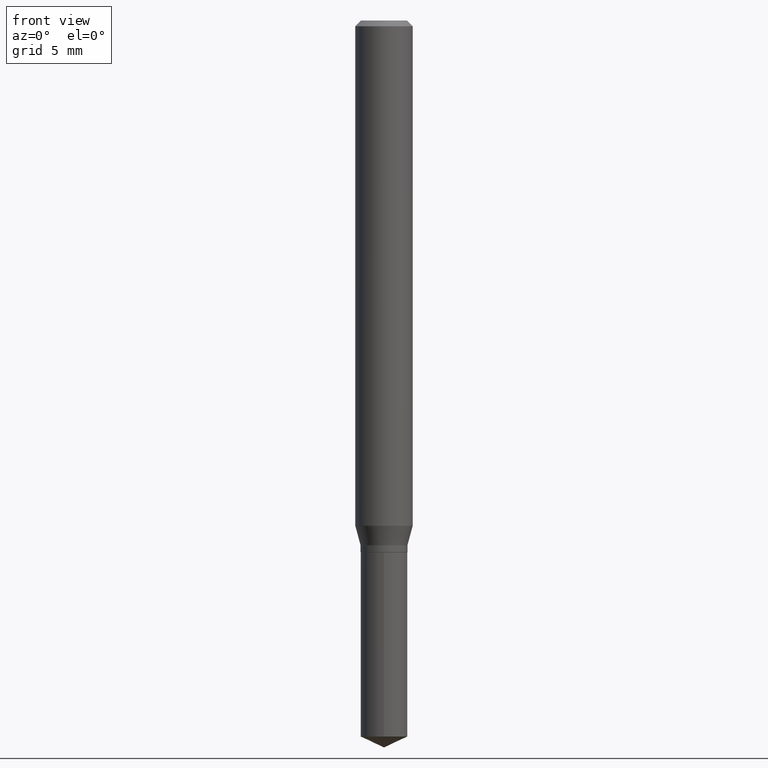
[diagram: clean part render]
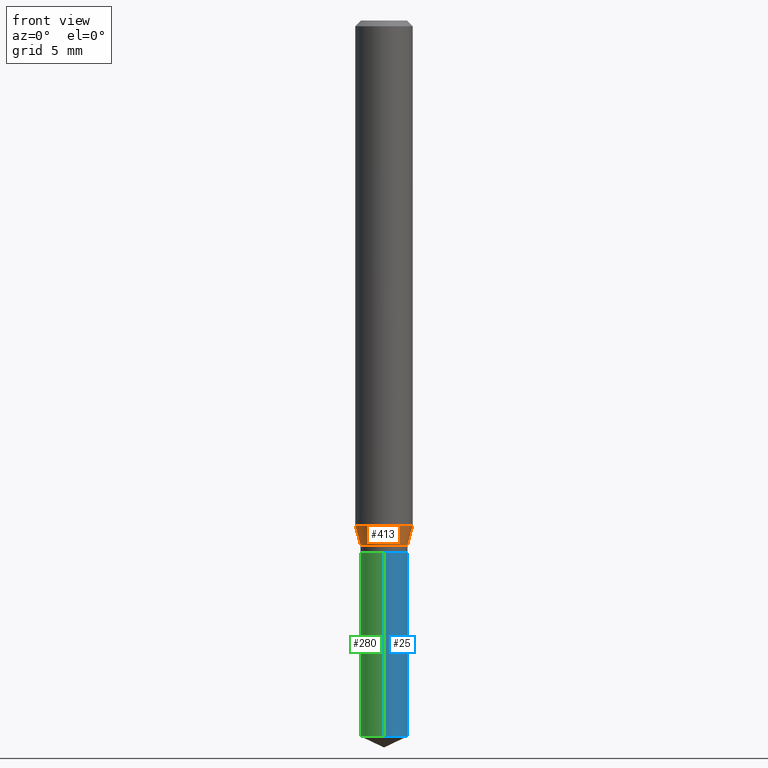
[diagram: same view with three faces highlighted in distinct colors, each labeled with its STEP entity id]
A machine part, front view with three faces highlighted in distinct colors.
Their STEP definitions:

[orange] entity #413 — the highlighted conical surface has half-angle 15 deg.
#1 = EDGE_CURVE ( 'NONE', #246, #277, #376, .T. ) ;
#5 = CARTESIAN_POINT ( 'NONE',  ( 0.05905000000000013016, -4.042415625965365299E-15, -1.039693851278255643 ) ) ;
#36 = CARTESIAN_POINT ( 'NONE',  ( -0.04824999999999998040, -3.427962975946348751E-15, -1.079999999999999849 ) ) ;
#38 = CARTESIAN_POINT ( 'NONE',  ( -0.05905000000000013016, -3.210496194381650492E-15, -1.039693851278255643 ) ) ;
#39 = VECTOR ( 'NONE', #377, 39.37007874015747433 ) ;
#43 = LINE ( 'NONE', #485, #39 ) ;
#64 = CARTESIAN_POINT ( 'NONE',  ( 2.641106310679947278E-29, -3.770799845950596803E-15, -1.079999999999999849 ) ) ;
#76 = FACE_OUTER_BOUND ( 'NONE', #180, .T. ) ;
#98 = VERTEX_POINT ( 'NONE', #189 ) ;
#126 = AXIS2_PLACEMENT_3D ( 'NONE', #294, #168, #315 ) ;
#133 = ORIENTED_EDGE ( 'NONE', *, *, #1, .F. ) ;
#143 = CIRCLE ( 'NONE', #259, 0.04824999999999998040 ) ;
#168 = DIRECTION ( 'NONE',  ( -2.445468806185136597E-29, 3.491481338843145583E-15, 1.000000000000000000 ) ) ;
#180 = EDGE_LOOP ( 'NONE', ( #437, #364, #286, #133 ) ) ;
#183 = CARTESIAN_POINT ( 'NONE',  ( 2.641106310679947278E-29, -3.770799845950596803E-15, -1.079999999999999849 ) ) ;
#189 = CARTESIAN_POINT ( 'NONE',  ( 0.04824999999999998040, -4.107727795148959614E-15, -1.079999999999999849 ) ) ;
#219 = LINE ( 'NONE', #36, #434 ) ;
#246 = VERTEX_POINT ( 'NONE', #38 ) ;
#249 = VERTEX_POINT ( 'NONE', #322 ) ;
#259 = AXIS2_PLACEMENT_3D ( 'NONE', #183, #488, #414 ) ;
#277 = VERTEX_POINT ( 'NONE', #5 ) ;
#286 = ORIENTED_EDGE ( 'NONE', *, *, #459, .T. ) ;
#294 = CARTESIAN_POINT ( 'NONE',  ( 2.542538881283463133E-29, -3.630071679847990379E-15, -1.039693851278255643 ) ) ;
#315 = DIRECTION ( 'NONE',  ( 1.000000000000000000, -6.982962677686265133E-15, 0.000000000000000000 ) ) ;
#322 = CARTESIAN_POINT ( 'NONE',  ( -0.04824999999999998040, -3.452403345318250590E-15, -1.079999999999999849 ) ) ;
#325 = DIRECTION ( 'NONE',  ( -0.2588190451025214611, 5.211531920934551042E-15, 0.9659258262890682012 ) ) ;
#364 = ORIENTED_EDGE ( 'NONE', *, *, #404, .T. ) ;
#376 = CIRCLE ( 'NONE', #126, 0.05905000000000013016 ) ;
#377 = DIRECTION ( 'NONE',  ( 0.2588190451025214611, 1.565188264969621573E-15, 0.9659258262890682012 ) ) ;
#388 = EDGE_CURVE ( 'NONE', #249, #246, #219, .T. ) ;
#394 = DIRECTION ( 'NONE',  ( 1.000000000000000000, -6.982962677686270655E-15, 0.000000000000000000 ) ) ;
#404 = EDGE_CURVE ( 'NONE', #249, #98, #143, .T. ) ;
#413 = ADVANCED_FACE ( 'NONE', ( #76 ), #468, .T. ) ;
#414 = DIRECTION ( 'NONE',  ( 1.000000000000000000, -6.982962677686270655E-15, 0.000000000000000000 ) ) ;
#434 = VECTOR ( 'NONE', #325, 39.37007874015747433 ) ;
#437 = ORIENTED_EDGE ( 'NONE', *, *, #388, .F. ) ;
#459 = EDGE_CURVE ( 'NONE', #98, #277, #43, .T. ) ;
#468 = CONICAL_SURFACE ( 'NONE', #476, 0.04824999999999998040, 0.2617993877991501295 ) ;
#471 = DIRECTION ( 'NONE',  ( -2.445468806185136597E-29, 3.491481338843145583E-15, 1.000000000000000000 ) ) ;
#476 = AXIS2_PLACEMENT_3D ( 'NONE', #64, #471, #394 ) ;
#485 = CARTESIAN_POINT ( 'NONE',  ( 0.04824999999999998040, -4.107727795148959614E-15, -1.079999999999999849 ) ) ;
#488 = DIRECTION ( 'NONE',  ( -2.445468806185136597E-29, 3.491481338843145583E-15, 1.000000000000000000 ) ) ;

[blue] entity #25 — the highlighted cylindrical surface (edge-blend (fillet) strip) has radius 1.2255 mm, axis along (-0, 0, 1).
#10 = CARTESIAN_POINT ( 'NONE',  ( -3.369279491983355948E-16, -0.04825000000000382455, -1.094499999999999806 ) ) ;
#25 = ADVANCED_FACE ( 'NONE', ( #440 ), #351, .T. ) ;
#29 = LINE ( 'NONE', #248, #310 ) ;
#48 = DIRECTION ( 'NONE',  ( -2.445358326776455510E-29, 3.491639551644474585E-15, 1.000000000000000000 ) ) ;
#49 = ORIENTED_EDGE ( 'NONE', *, *, #131, .F. ) ;
#84 = AXIS2_PLACEMENT_3D ( 'NONE', #460, #118, #383 ) ;
#93 = CARTESIAN_POINT ( 'NONE',  ( 3.428368700042843894E-16, 0.04824999999999617789, -1.094500000000000028 ) ) ;
#112 = DIRECTION ( 'NONE',  ( -6.982962677686266711E-15, -1.000000000000000000, 2.830930563382656003E-15 ) ) ;
#118 = DIRECTION ( 'NONE',  ( -2.445358326776455510E-29, 3.491639551644474585E-15, 1.000000000000000000 ) ) ;
#131 = EDGE_CURVE ( 'NONE', #486, #311, #406, .T. ) ;
#136 = VERTEX_POINT ( 'NONE', #191 ) ;
#146 = EDGE_CURVE ( 'NONE', #136, #312, #257, .T. ) ;
#155 = DIRECTION ( 'NONE',  ( -2.445358326776455790E-29, 3.491639551644474585E-15, 1.000000000000000000 ) ) ;
#176 = ORIENTED_EDGE ( 'NONE', *, *, #309, .F. ) ;
#181 = AXIS2_PLACEMENT_3D ( 'NONE', #291, #245, #112 ) ;
#191 = CARTESIAN_POINT ( 'NONE',  ( -3.369279491983263750E-16, -0.04825000000000515682, -1.473600655494020861 ) ) ;
#192 = DIRECTION ( 'NONE',  ( -6.982962677686266711E-15, -1.000000000000000000, 5.661861126765312006E-15 ) ) ;
#209 = ORIENTED_EDGE ( 'NONE', *, *, #146, .T. ) ;
#231 = EDGE_CURVE ( 'NONE', #312, #311, #29, .T. ) ;
#234 = CARTESIAN_POINT ( 'NONE',  ( 3.428368700042844387E-16, 0.04824999999999485950, -1.473600655494021527 ) ) ;
#245 = DIRECTION ( 'NONE',  ( -2.445358326776455510E-29, 3.491639551644474585E-15, 1.000000000000000000 ) ) ;
#248 = CARTESIAN_POINT ( 'NONE',  ( 3.428368700042750217E-16, 0.04824999999999617789, -1.094500000000000028 ) ) ;
#257 = CIRCLE ( 'NONE', #316, 0.04825000000000000122 ) ;
#283 = ORIENTED_EDGE ( 'NONE', *, *, #231, .T. ) ;
#291 = CARTESIAN_POINT ( 'NONE',  ( 2.676565608369631794E-29, -3.821426325363822773E-15, -1.094499999999999806 ) ) ;
#302 = DIRECTION ( 'NONE',  ( -2.445358326776455790E-29, 3.491639551644474585E-15, 1.000000000000000000 ) ) ;
#305 = VECTOR ( 'NONE', #155, 39.37007874015748143 ) ;
#309 = EDGE_CURVE ( 'NONE', #136, #486, #344, .T. ) ;
#310 = VECTOR ( 'NONE', #302, 39.37007874015748143 ) ;
#311 = VERTEX_POINT ( 'NONE', #93 ) ;
#312 = VERTEX_POINT ( 'NONE', #234 ) ;
#316 = AXIS2_PLACEMENT_3D ( 'NONE', #384, #48, #192 ) ;
#330 = CARTESIAN_POINT ( 'NONE',  ( -3.369279491983355948E-16, -0.04825000000000382455, -1.094499999999999806 ) ) ;
#344 = LINE ( 'NONE', #10, #305 ) ;
#351 = CYLINDRICAL_SURFACE ( 'NONE', #181, 0.04825000000000000122 ) ;
#383 = DIRECTION ( 'NONE',  ( -6.982962677686266711E-15, -1.000000000000000000, 2.830930563382656003E-15 ) ) ;
#384 = CARTESIAN_POINT ( 'NONE',  ( 3.603602552968349358E-29, -5.145109168141093306E-15, -1.473600655494021305 ) ) ;
#402 = EDGE_LOOP ( 'NONE', ( #209, #283, #49, #176 ) ) ;
#406 = CIRCLE ( 'NONE', #84, 0.04825000000000000122 ) ;
#440 = FACE_OUTER_BOUND ( 'NONE', #402, .T. ) ;
#460 = CARTESIAN_POINT ( 'NONE',  ( 2.676565608369631794E-29, -3.821426325363822773E-15, -1.094499999999999806 ) ) ;
#486 = VERTEX_POINT ( 'NONE', #330 ) ;

[green] entity #280 — the highlighted cylindrical surface (edge-blend (fillet) strip) has radius 1.2255 mm, axis along (-0, 0, 1).
#10 = CARTESIAN_POINT ( 'NONE',  ( -3.369279491983355948E-16, -0.04825000000000382455, -1.094499999999999806 ) ) ;
#14 = EDGE_LOOP ( 'NONE', ( #51, #307, #134, #141 ) ) ;
#29 = LINE ( 'NONE', #248, #310 ) ;
#31 = CIRCLE ( 'NONE', #292, 0.04825000000000000122 ) ;
#51 = ORIENTED_EDGE ( 'NONE', *, *, #231, .F. ) ;
#56 = DIRECTION ( 'NONE',  ( -2.445358326776455510E-29, 3.491639551644474585E-15, 1.000000000000000000 ) ) ;
#65 = EDGE_CURVE ( 'NONE', #311, #486, #327, .T. ) ;
#93 = CARTESIAN_POINT ( 'NONE',  ( 3.428368700042843894E-16, 0.04824999999999617789, -1.094500000000000028 ) ) ;
#134 = ORIENTED_EDGE ( 'NONE', *, *, #309, .T. ) ;
#136 = VERTEX_POINT ( 'NONE', #191 ) ;
#137 = DIRECTION ( 'NONE',  ( -2.445358326776455510E-29, 3.491639551644474585E-15, 1.000000000000000000 ) ) ;
#141 = ORIENTED_EDGE ( 'NONE', *, *, #65, .F. ) ;
#155 = DIRECTION ( 'NONE',  ( -2.445358326776455790E-29, 3.491639551644474585E-15, 1.000000000000000000 ) ) ;
#159 = CARTESIAN_POINT ( 'NONE',  ( 2.676565608369631794E-29, -3.821426325363822773E-15, -1.094499999999999806 ) ) ;
#174 = CARTESIAN_POINT ( 'NONE',  ( 2.676565608369631794E-29, -3.821426325363822773E-15, -1.094499999999999806 ) ) ;
#179 = DIRECTION ( 'NONE',  ( -6.982962677686266711E-15, -1.000000000000000000, 5.661861126765312006E-15 ) ) ;
#191 = CARTESIAN_POINT ( 'NONE',  ( -3.369279491983263750E-16, -0.04825000000000515682, -1.473600655494020861 ) ) ;
#194 = FACE_OUTER_BOUND ( 'NONE', #14, .T. ) ;
#196 = AXIS2_PLACEMENT_3D ( 'NONE', #174, #478, #353 ) ;
#227 = CARTESIAN_POINT ( 'NONE',  ( 3.603602552968349358E-29, -5.145109168141093306E-15, -1.473600655494021305 ) ) ;
#231 = EDGE_CURVE ( 'NONE', #312, #311, #29, .T. ) ;
#234 = CARTESIAN_POINT ( 'NONE',  ( 3.428368700042844387E-16, 0.04824999999999485950, -1.473600655494021527 ) ) ;
#237 = AXIS2_PLACEMENT_3D ( 'NONE', #159, #56, #270 ) ;
#248 = CARTESIAN_POINT ( 'NONE',  ( 3.428368700042750217E-16, 0.04824999999999617789, -1.094500000000000028 ) ) ;
#270 = DIRECTION ( 'NONE',  ( -6.982962677686266711E-15, -1.000000000000000000, 2.830930563382656003E-15 ) ) ;
#280 = ADVANCED_FACE ( 'NONE', ( #194 ), #462, .T. ) ;
#292 = AXIS2_PLACEMENT_3D ( 'NONE', #227, #137, #179 ) ;
#302 = DIRECTION ( 'NONE',  ( -2.445358326776455790E-29, 3.491639551644474585E-15, 1.000000000000000000 ) ) ;
#305 = VECTOR ( 'NONE', #155, 39.37007874015748143 ) ;
#307 = ORIENTED_EDGE ( 'NONE', *, *, #360, .T. ) ;
#309 = EDGE_CURVE ( 'NONE', #136, #486, #344, .T. ) ;
#310 = VECTOR ( 'NONE', #302, 39.37007874015748143 ) ;
#311 = VERTEX_POINT ( 'NONE', #93 ) ;
#312 = VERTEX_POINT ( 'NONE', #234 ) ;
#327 = CIRCLE ( 'NONE', #196, 0.04825000000000000122 ) ;
#330 = CARTESIAN_POINT ( 'NONE',  ( -3.369279491983355948E-16, -0.04825000000000382455, -1.094499999999999806 ) ) ;
#344 = LINE ( 'NONE', #10, #305 ) ;
#353 = DIRECTION ( 'NONE',  ( -6.982962677686266711E-15, -1.000000000000000000, 2.830930563382656003E-15 ) ) ;
#360 = EDGE_CURVE ( 'NONE', #312, #136, #31, .T. ) ;
#462 = CYLINDRICAL_SURFACE ( 'NONE', #237, 0.04825000000000000122 ) ;
#478 = DIRECTION ( 'NONE',  ( -2.445358326776455510E-29, 3.491639551644474585E-15, 1.000000000000000000 ) ) ;
#486 = VERTEX_POINT ( 'NONE', #330 ) ;